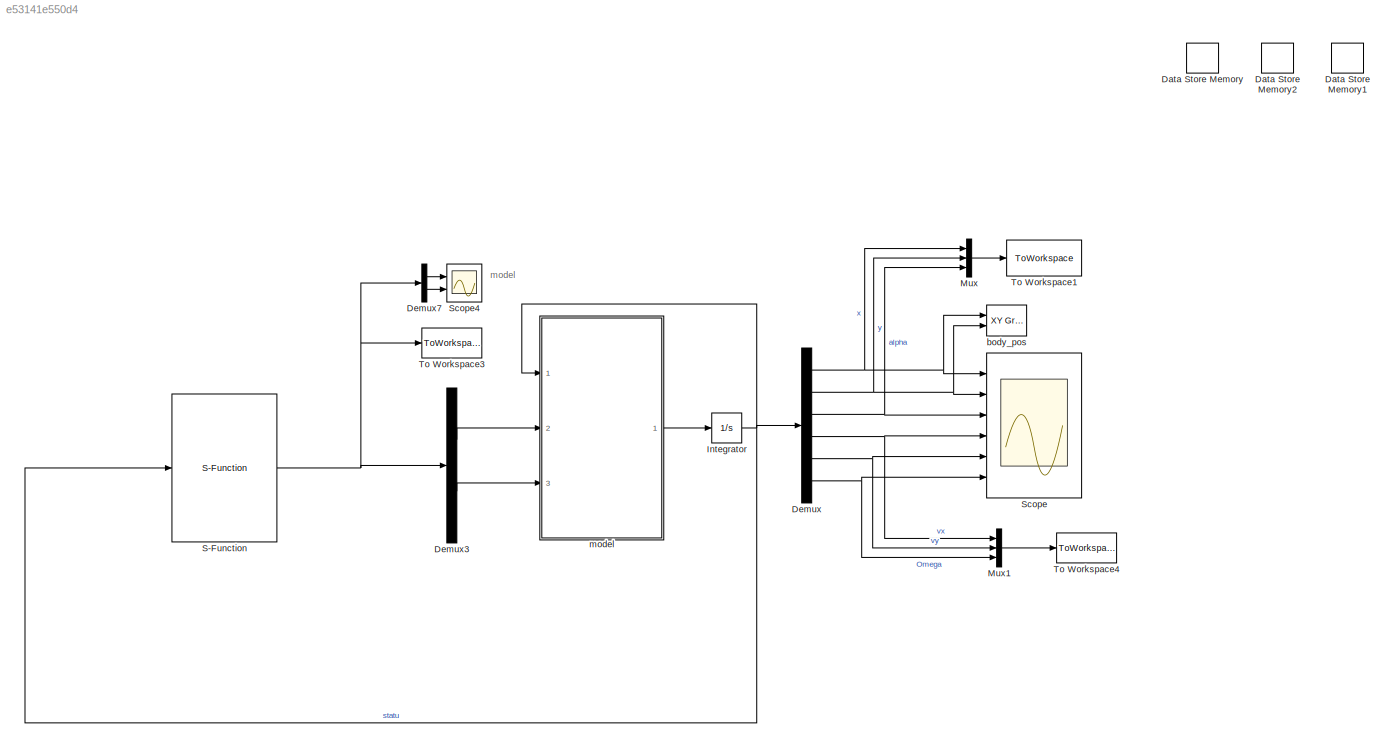
MODEL slx_e53141e550d4
KIND model
CONFIG AbsTol = auto
CONFIG EnableMultiTasking = off
CONFIG FixedStep = 0.0001
CONFIG MaxStep = 0.05
CONFIG MinStep = 0.04
CONFIG RelTol = 1e-3
CONFIG SampleTimeConstraint = Unconstrained
CONFIG Solver = ode45
CONFIG SolverName = ode45
CONFIG StartTime = 0.0
CONFIG StopTime = 20
BLOCK [DataStoreMemory] Data Store Memory
  DataStoreName = d
  OutDataTypeStr = double
  ReadBeforeWriteMsg = warning
  ShowAdditionalParam = off
  SignalType = real
  WriteAfterReadMsg = warning
  WriteAfterWriteMsg = warning
BLOCK [DataStoreMemory] Data Store Memory1
  DataStoreName = wheel_radius
  OutDataTypeStr = double
  ReadBeforeWriteMsg = warning
  ShowAdditionalParam = off
  SignalType = real
  WriteAfterReadMsg = warning
  WriteAfterWriteMsg = warning
BLOCK [DataStoreMemory] Data Store Memory2
  DataStoreName = l
  OutDataTypeStr = double
  ReadBeforeWriteMsg = warning
  ShowAdditionalParam = off
  SignalType = real
  WriteAfterReadMsg = warning
  WriteAfterWriteMsg = warning
BLOCK [Demux] Demux
  DisplayOption = bar
  Outputs = 6
  Ports = [1, 6]
BLOCK [Demux] Demux3
  DisplayOption = bar
  Outputs = 2
  Ports = [1, 2]
BLOCK [Demux] Demux7
  DisplayOption = bar
  Outputs = 2
  Ports = [1, 2]
BLOCK [Integrator] Integrator
  IgnoreLimit = on
  InitialCondition = [2 -2 pi/2 0 0 0]
  Ports = [1, 1]
BLOCK [Mux] Mux
  DisplayOption = bar
  Inputs = 3
  Ports = [3, 1]
BLOCK [Mux] Mux1
  DisplayOption = bar
  Inputs = 3
  Ports = [3, 1]
BLOCK [S-Function] S-Function
  EnableBusSupport = off
  FunctionName = MPC_control
  Ports = [1, 1]
  SFcnIsStateOwnerBlock = off
  SFunctionDeploymentMode = off
BLOCK [Scope] Scope
  NumInputPorts = 6
  Ports = [6]
  ScopeSpecificationString = Simulink.scopes.TimeScopeBlockCfg('CurrentConfiguration', extmgr.ConfigurationSet(extmgr.Configuration('Core','General UI',true),extmgr.Configuration('Core','Source UI',true),extmgr.Configuration('Sources','WiredSimulink',true,'DataLoggingVariableName','ScopeData1'),extmgr.Configuration('Visuals','Time Domain',true,'SerializedDisplays',{struct('MinYLimReal','0.10442','MaxYLimReal','7.84514','YLabe...<+2681ch>
BLOCK [Scope] Scope4
  NumInputPorts = 2
  Ports = [2]
  ScopeSpecificationString = Simulink.scopes.TimeScopeBlockCfg('CurrentConfiguration', extmgr.ConfigurationSet(extmgr.Configuration('Core','General UI',true),extmgr.Configuration('Core','Source UI',true),extmgr.Configuration('Sources','WiredSimulink',true,'DataLoggingVariableName','ScopeData1'),extmgr.Configuration('Visuals','Time Domain',true,'SerializedDisplays',{struct('MinYLimReal','-3154.38477','MaxYLimReal','2134.35305'...<+2064ch>
BLOCK [ToWorkspace] To Workspace1
  FixptAsFi = on
  MaxDataPoints = inf
  Ports = [1]
  SampleTime = -1
  Save2DSignal = 3-D array (concatenate along third dimension)
  VariableName = body_position
BLOCK [ToWorkspace] To Workspace3
  FixptAsFi = on
  MaxDataPoints = inf
  Ports = [1]
  SampleTime = -1
  Save2DSignal = 3-D array (concatenate along third dimension)
  VariableName = control_u
BLOCK [ToWorkspace] To Workspace4
  FixptAsFi = on
  MaxDataPoints = inf
  Ports = [1]
  SampleTime = -1
  Save2DSignal = 3-D array (concatenate along third dimension)
  VariableName = body_vel
BLOCK [Reference] body_pos  REF=simulink/Sinks/XY Graph
  Ports = [2]
  SourceBlock = simulink/Sinks/XY Graph
  SourceProductBaseCode = SL
  SourceProductName = Simulink
  SourceType = XY scope.
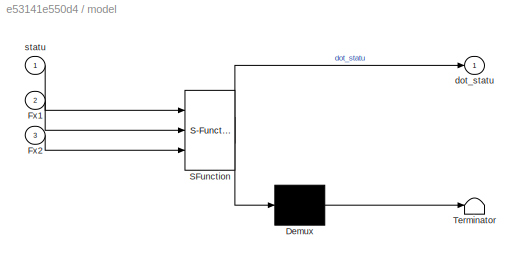
BLOCK [SubSystem] model
  ErrorFcn = Stateflow.Translate.translate
  PermitHierarchicalResolution = ExplicitOnly
  Ports = [3, 1]
  RequestExecContextInheritance = off
  SFBlockType = MATLAB Function
  TreatAsAtomicUnit = on
  Variant = off
BLOCK [Demux] model/ Demux 
  Outputs = 1
  Ports = [1, 1]
BLOCK [S-Function] model/ SFunction 
  EnableBusSupport = on
  FunctionName = sf_sfun
  PortCounts = [3 2]
  Ports = [3, 2]
  SFcnIsStateOwnerBlock = off
  SFunctionDeploymentMode = off
  Tag = Stateflow S-Function sim2020_7_21_v2 2
BLOCK [Terminator] model/ Terminator 
BLOCK [Inport] model/Fx1
  IconDisplay = Port number
  Port = 2
BLOCK [Inport] model/Fx2
  IconDisplay = Port number
  Port = 3
BLOCK [Outport] model/dot_statu
  IconDisplay = Port number
BLOCK [Inport] model/statu
  IconDisplay = Port number
ANNOTATION (root): model
LINE Demux3:1 -> model:2
LINE Demux3:2 -> model:3
LINE Demux7:1 -> Scope4:1
LINE Demux7:2 -> Scope4:2
NET Demux:1 -> Mux:1, Scope:1, body_pos:1
NET Demux:2 -> Mux:2, Scope:2, body_pos:2
NET Demux:3 -> Mux:3, Scope:3
NET Demux:4 -> Mux1:1, Scope:4
NET Demux:5 -> Mux1:2, Scope:5
NET Demux:6 -> Mux1:3, Scope:6
NET Integrator:1 -> Demux:1, S-Function:1, model:1
LINE Mux1:1 -> To Workspace4:1
LINE Mux:1 -> To Workspace1:1
NET S-Function:1 -> Demux3:1, Demux7:1, To Workspace3:1
LINE model:1 -> Integrator:1
note: NET lines group one-source signal fan-out (src -> all destinations, sorted); 1:1 wires keep LINE
CHART model states=1 transitions=1
  STATE_LABEL 'eML_blk_kernel()'
  STATE_LABEL 'SCRIPT:\nfunction dot_statu = model(statu, Fx1 , Fx2 )\nglobal wheel_radius d l ;\nwheel_radius = 0.330/2;\nd = 0.18;\nl = 0.16;\nm = 24;\nIz = 11.89;\nc = 513.6; %轮胎侧偏刚度\n\n\nx = statu(1);\ny = statu(2);\nalpha = statu(3);\nvx = statu(4);\nvy = statu(5);\nomega = statu(6);\n\ndot_x = vx*cos(alpha)-vy*sin(alpha);\ndot_y = vx*sin(alpha)+vy*cos(alpha);\ndot_alpha = omega;\ndot_vx = (Fx1+Fx2)/m;\ndot_vy = (-2*c*(vy+l*omeg...<+458ch>'
